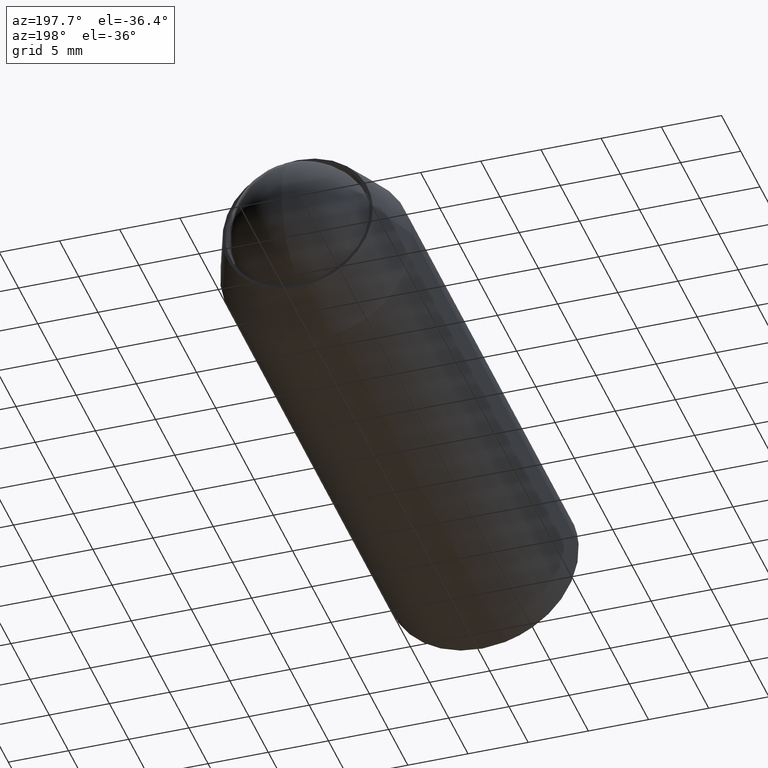
[diagram: clean part render]
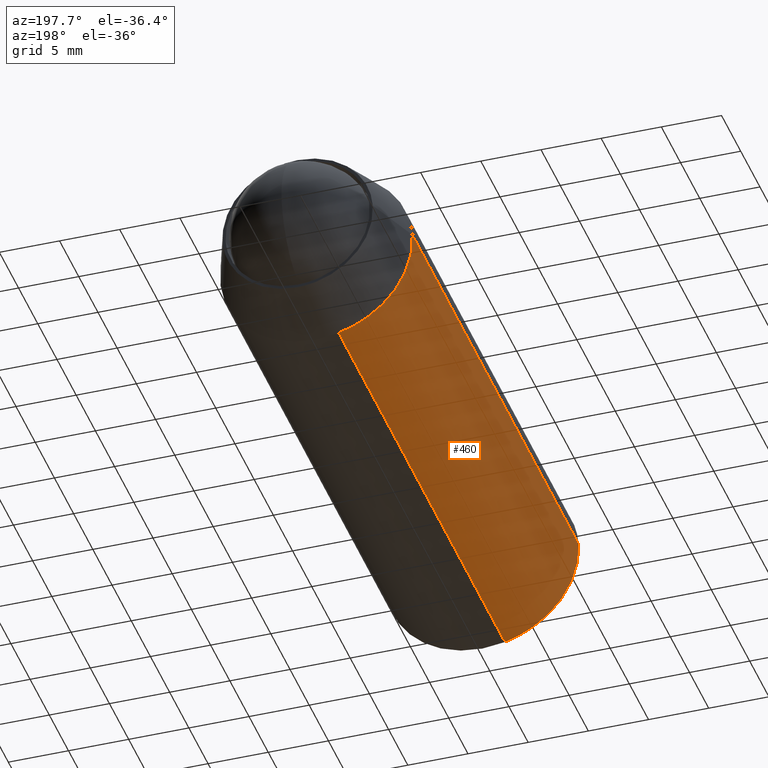
[diagram: same view with one face highlighted and labeled with its STEP entity id]
A machine part, auxiliary view. The second image highlights one B-rep face of the part: STEP entity #460.
In plain terms, the highlighted face is a freeform B-spline surface patch.
Its self-contained STEP definition (entity closure, byte-faithful):
#256=CARTESIAN_POINT('',(-1.874588911888321,-48.099999999999987,-7.777269212996639));
#257=VERTEX_POINT('',#256);
#273=CARTESIAN_POINT('',(-1.874588911888321,-4.808085999999999,-7.777269212996639));
#274=VERTEX_POINT('',#273);
#275=CARTESIAN_POINT('',(-1.874588911888321,-4.808085999999999,-7.777269212996639));
#276=CARTESIAN_POINT('',(-1.874588911888321,-48.099999999999987,-7.777269212996639));
#277=QUASI_UNIFORM_CURVE('',1,(#275,#276),.UNSPECIFIED.,.F.,.U.);
#278=EDGE_CURVE('',#274,#257,#277,.T.);
#327=CARTESIAN_POINT('',(-7.985078387375163,-4.808086000010075,0.488388316320178));
#328=VERTEX_POINT('',#327);
#342=CARTESIAN_POINT('',(-7.985078427886355,-48.099999999999987,0.488387653922092));
#343=VERTEX_POINT('',#342);
#344=CARTESIAN_POINT('',(-7.985078387375163,-4.808086000010075,0.488388316320178));
#345=CARTESIAN_POINT('',(-7.985078427886355,-48.099999999999987,0.488387653922092));
#346=QUASI_UNIFORM_CURVE('',1,(#344,#345),.UNSPECIFIED.,.F.,.U.);
#347=EDGE_CURVE('',#328,#343,#346,.T.);
#412=CARTESIAN_POINT('',(-7.985078387374934,-3.725788149999997,0.488388316278855));
#413=CARTESIAN_POINT('',(-8.394509095444208,-3.725788149999997,-6.205744588130942));
#414=CARTESIAN_POINT('',(-1.874588911880106,-3.725788149999997,-7.777269212998617));
#415=CARTESIAN_POINT('',(-7.985078387374934,-49.209355296250010,0.488388316278855));
#416=CARTESIAN_POINT('',(-8.394509095444208,-49.209355296250010,-6.205744588130942));
#417=CARTESIAN_POINT('',(-1.874588911880106,-49.209355296250010,-7.777269212998617));
#425=(BOUNDED_SURFACE()B_SPLINE_SURFACE(2,1,((#412,#415),(#413,#416),(#414,#417)),.UNSPECIFIED.,.F.,.F.,.U.)B_SPLINE_SURFACE_WITH_KNOTS((3,3),(2,2),(0.0,11.635506658838469),(0.0,45.483567146250017),.UNSPECIFIED.)GEOMETRIC_REPRESENTATION_ITEM()RATIONAL_B_SPLINE_SURFACE(((1.0,1.0),(0.742253967444162,0.742253967444162),(0.938140952186599,0.938140952186599)))REPRESENTATION_ITEM('')SURFACE());
#426=CARTESIAN_POINT('',(-7.985078427886355,-48.099999999999994,0.488387653922092));
#427=CARTESIAN_POINT('',(-8.0,-48.099999999999994,0.244421442174768));
#428=CARTESIAN_POINT('',(-8.0,-48.099999999999987,-1.291960E-015));
#429=CARTESIAN_POINT('',(-8.0,-48.100000000000001,-6.300834825538831));
#430=CARTESIAN_POINT('',(-1.874588911888321,-48.100000000000001,-7.777269212996639));
#438=(BOUNDED_CURVE()B_SPLINE_CURVE(2,(#426,#427,#428,#429,#430),.UNSPECIFIED.,.F.,.U.)B_SPLINE_CURVE_WITH_KNOTS((3,2,3),(0.739332990867244,0.750000000000000,0.959962709885903),.UNSPECIFIED.)CURVE()GEOMETRIC_REPRESENTATION_ITEM()RATIONAL_B_SPLINE_CURVE((0.976072103022625,0.987502821439979,1.0,0.754013384282891,0.921210900018794))REPRESENTATION_ITEM(''));
#439=EDGE_CURVE('',#343,#257,#438,.T.);
#440=ORIENTED_EDGE('',*,*,#439,.F.);
#441=ORIENTED_EDGE('',*,*,#347,.F.);
#442=CARTESIAN_POINT('',(-7.985078387375163,-4.808086000010075,0.488388316320178));
#443=CARTESIAN_POINT('',(-8.0,-4.808085999999999,0.244422106443738));
#444=CARTESIAN_POINT('',(-8.0,-4.808085999999999,-1.291960E-015));
#445=CARTESIAN_POINT('',(-8.000000000000002,-4.808085999999999,-6.300834825538809));
#446=CARTESIAN_POINT('',(-1.874588911888321,-4.808086000000000,-7.777269212996640));
#454=(BOUNDED_CURVE()B_SPLINE_CURVE(2,(#442,#443,#444,#445,#446),.UNSPECIFIED.,.F.,.U.)B_SPLINE_CURVE_WITH_KNOTS((3,2,3),(0.739332962239597,0.750000000000000,0.959962709885903),.UNSPECIFIED.)CURVE()GEOMETRIC_REPRESENTATION_ITEM()RATIONAL_B_SPLINE_CURVE((0.976072041668119,0.987502787900603,1.0,0.754013384282891,0.921210900018793))REPRESENTATION_ITEM(''));
#455=EDGE_CURVE('',#328,#274,#454,.T.);
#456=ORIENTED_EDGE('',*,*,#455,.T.);
#457=ORIENTED_EDGE('',*,*,#278,.T.);
#458=EDGE_LOOP('',(#440,#441,#456,#457));
#459=FACE_OUTER_BOUND('',#458,.T.);
#460=ADVANCED_FACE('',(#459),#425,.T.);